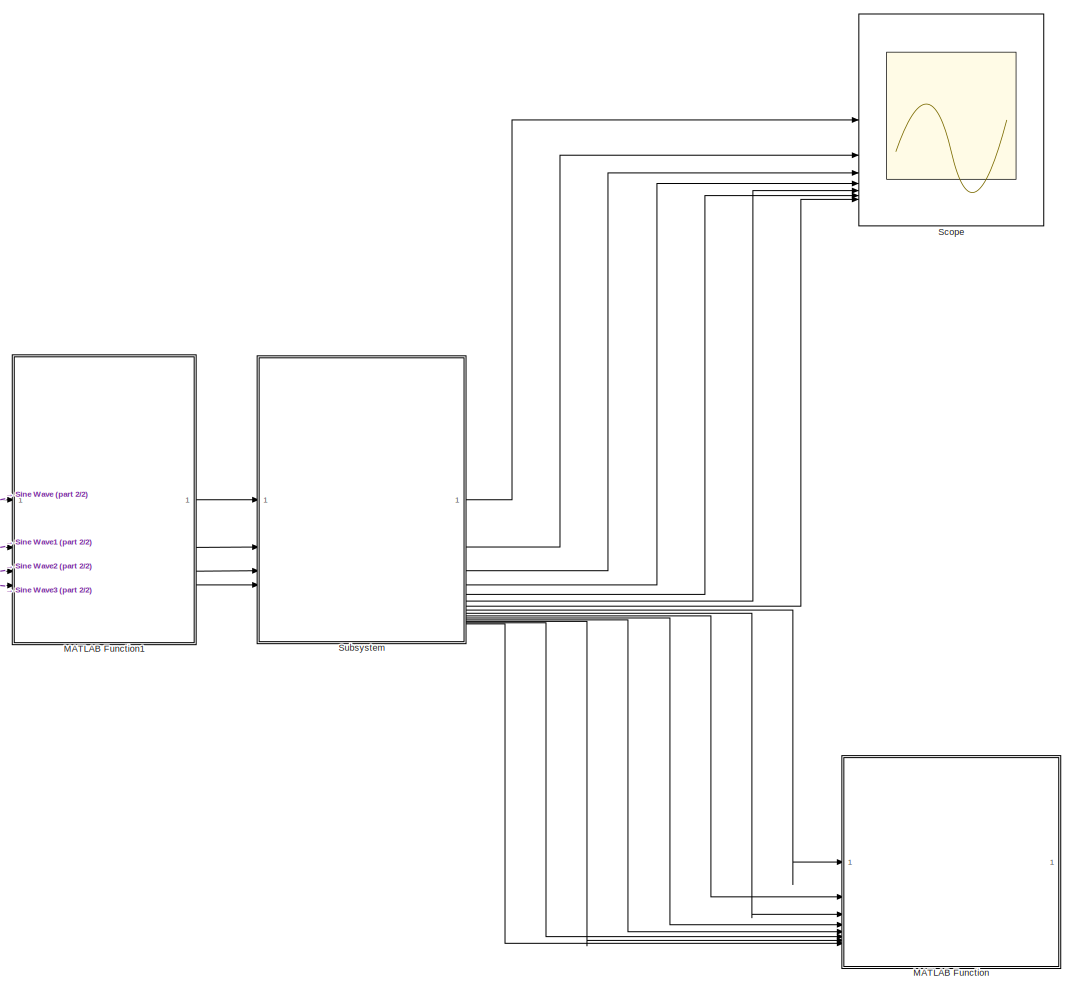
[diagram: root canvas - part 1/2, most of the canvas]
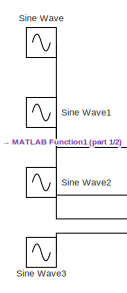
[diagram: root canvas - part 2/2, middle left region]
MODEL slx_ad8d6915db1b
KIND model
CONFIG AbsTol = auto
CONFIG EnableMultiTasking = off
CONFIG FixedStep = auto
CONFIG MaxStep = auto
CONFIG MinStep = auto
CONFIG RelTol = 1e-3
CONFIG SampleTimeConstraint = Unconstrained
CONFIG SolverName = VariableStepAuto
CONFIG StartTime = 0.0
CONFIG StopTime = 5
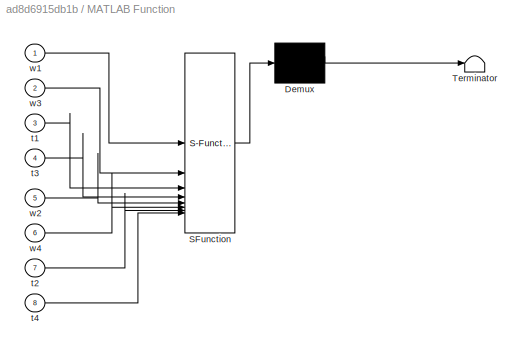
BLOCK [SubSystem] MATLAB Function
  ErrorFcn = Stateflow.Translate.translate
  PermitHierarchicalResolution = ExplicitOnly
  SFBlockType = MATLAB Function
  TreatAsAtomicUnit = on
BLOCK [Demux] MATLAB Function/ Demux 
  Outputs = 1
BLOCK [S-Function] MATLAB Function/ SFunction 
  EnableBusSupport = on
  FunctionName = sf_sfun
  PortCounts = [8 1]
  SFcnIsStateOwnerBlock = off
  SFunctionDeploymentMode = off
  Tag = Stateflow S-Function 2
BLOCK [Terminator] MATLAB Function/ Terminator 
BLOCK [Inport] MATLAB Function/t1
  Port = 3
BLOCK [Inport] MATLAB Function/t2
  Port = 7
BLOCK [Inport] MATLAB Function/t3
  Port = 4
BLOCK [Inport] MATLAB Function/t4
  Port = 8
BLOCK [Inport] MATLAB Function/w1
BLOCK [Inport] MATLAB Function/w2
  Port = 5
BLOCK [Inport] MATLAB Function/w3
  Port = 2
BLOCK [Inport] MATLAB Function/w4
  Port = 6
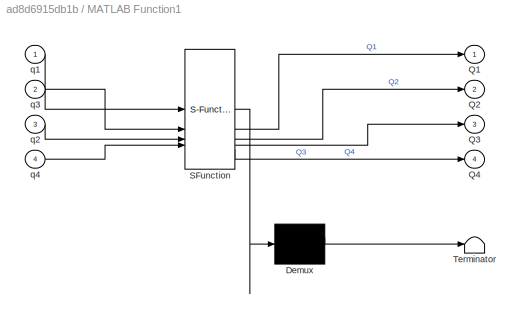
BLOCK [SubSystem] MATLAB Function1
  ErrorFcn = Stateflow.Translate.translate
  PermitHierarchicalResolution = ExplicitOnly
  SFBlockType = MATLAB Function
  TreatAsAtomicUnit = on
BLOCK [Demux] MATLAB Function1/ Demux 
  Outputs = 1
BLOCK [S-Function] MATLAB Function1/ SFunction 
  EnableBusSupport = on
  FunctionName = sf_sfun
  PortCounts = [4 5]
  SFcnIsStateOwnerBlock = off
  SFunctionDeploymentMode = off
  Tag = Stateflow S-Function 1
BLOCK [Terminator] MATLAB Function1/ Terminator 
BLOCK [Outport] MATLAB Function1/Q1
BLOCK [Outport] MATLAB Function1/Q2
  Port = 2
BLOCK [Outport] MATLAB Function1/Q3
  Port = 3
BLOCK [Outport] MATLAB Function1/Q4
  Port = 4
BLOCK [Inport] MATLAB Function1/q1
BLOCK [Inport] MATLAB Function1/q2
  Port = 3
BLOCK [Inport] MATLAB Function1/q3
  Port = 2
BLOCK [Inport] MATLAB Function1/q4
  Port = 4
BLOCK [Scope] Scope
  Floating = off
  NumInputPorts = 7
  ScopeSpecificationString = Simulink.scopes.TimeScopeBlockCfg('CurrentConfiguration', extmgr.ConfigurationSet(extmgr.Configuration('Core','General UI',true),extmgr.Configuration('Core','Source UI',true),extmgr.Configuration('Sources','WiredSimulink',true),extmgr.Configuration('Visuals','Time Domain',true,'SerializedDisplays',{struct('MinYLimReal','-0.00262','MaxYLimReal','0.00029','YLabelReal','','MinYLimMag','0.00000','MaxY...<+6872ch>
BLOCK [Sin] Sine Wave
  SampleTime = 0
BLOCK [Sin] Sine Wave1
  SampleTime = 0
BLOCK [Sin] Sine Wave2
  SampleTime = 0
BLOCK [Sin] Sine Wave3
  SampleTime = 0
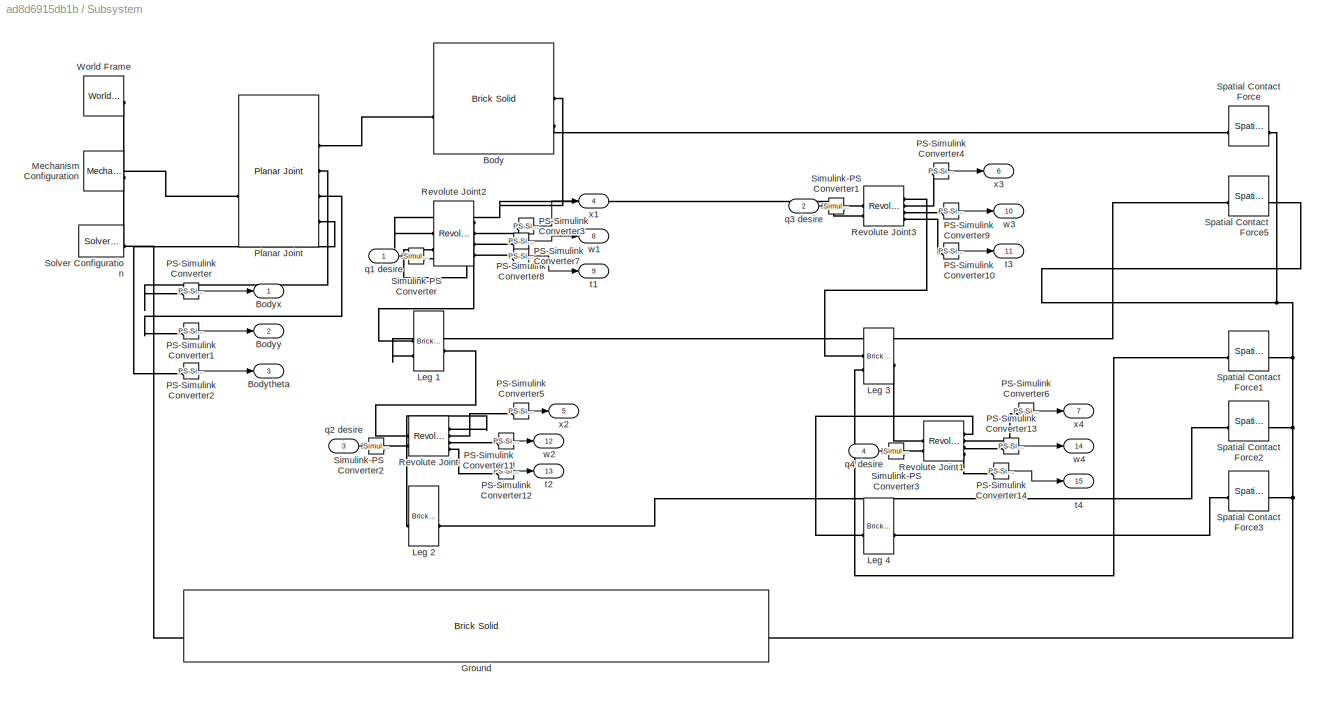
BLOCK [SubSystem] Subsystem
BLOCK [Reference] Subsystem/Body  REF=sm_lib/Body Elements/Brick Solid
  NameLocation = top
  SourceBlock = sm_lib/Body Elements/Brick Solid
  SourceType = Brick Solid
BLOCK [Outport] Subsystem/Bodytheta
  Port = 3
BLOCK [Outport] Subsystem/Bodyx
BLOCK [Outport] Subsystem/Bodyy
  Port = 2
BLOCK [Reference] Subsystem/Ground  REF=sm_lib/Body Elements/Brick Solid
  SourceBlock = sm_lib/Body Elements/Brick Solid
  SourceType = Brick Solid
BLOCK [Reference] Subsystem/Leg 1  REF=sm_lib/Body Elements/Brick Solid
  SourceBlock = sm_lib/Body Elements/Brick Solid
  SourceType = Brick Solid
BLOCK [Reference] Subsystem/Leg 2  REF=sm_lib/Body Elements/Brick Solid
  SourceBlock = sm_lib/Body Elements/Brick Solid
  SourceType = Brick Solid
BLOCK [Reference] Subsystem/Leg 3  REF=sm_lib/Body Elements/Brick Solid
  SourceBlock = sm_lib/Body Elements/Brick Solid
  SourceType = Brick Solid
BLOCK [Reference] Subsystem/Leg 4  REF=sm_lib/Body Elements/Brick Solid
  SourceBlock = sm_lib/Body Elements/Brick Solid
  SourceType = Brick Solid
BLOCK [Reference] Subsystem/Mechanism Configuration  REF=sm_lib/Utilities/Mechanism
Configuration
  SourceBlock = sm_lib/Utilities/Mechanism\nConfiguration
  SourceType = Mechanism\nConfiguration
BLOCK [Reference] Subsystem/PS-Simulink Converter  REF=nesl_utility/PS-Simulink
Converter
  SourceBlock = nesl_utility/PS-Simulink\nConverter
  SourceType = PS-Simulink\nConverter
BLOCK [Reference] Subsystem/PS-Simulink Converter1  REF=nesl_utility/PS-Simulink
Converter
  SourceBlock = nesl_utility/PS-Simulink\nConverter
  SourceType = PS-Simulink\nConverter
BLOCK [Reference] Subsystem/PS-Simulink Converter10  REF=nesl_utility/PS-Simulink
Converter
  SourceBlock = nesl_utility/PS-Simulink\nConverter
  SourceType = PS-Simulink\nConverter
BLOCK [Reference] Subsystem/PS-Simulink Converter11  REF=nesl_utility/PS-Simulink
Converter
  SourceBlock = nesl_utility/PS-Simulink\nConverter
  SourceType = PS-Simulink\nConverter
BLOCK [Reference] Subsystem/PS-Simulink Converter12  REF=nesl_utility/PS-Simulink
Converter
  SourceBlock = nesl_utility/PS-Simulink\nConverter
  SourceType = PS-Simulink\nConverter
BLOCK [Reference] Subsystem/PS-Simulink Converter13  REF=nesl_utility/PS-Simulink
Converter
  SourceBlock = nesl_utility/PS-Simulink\nConverter
  SourceType = PS-Simulink\nConverter
BLOCK [Reference] Subsystem/PS-Simulink Converter14  REF=nesl_utility/PS-Simulink
Converter
  SourceBlock = nesl_utility/PS-Simulink\nConverter
  SourceType = PS-Simulink\nConverter
BLOCK [Reference] Subsystem/PS-Simulink Converter2  REF=nesl_utility/PS-Simulink
Converter
  SourceBlock = nesl_utility/PS-Simulink\nConverter
  SourceType = PS-Simulink\nConverter
BLOCK [Reference] Subsystem/PS-Simulink Converter3  REF=nesl_utility/PS-Simulink
Converter
  SourceBlock = nesl_utility/PS-Simulink\nConverter
  SourceType = PS-Simulink\nConverter
BLOCK [Reference] Subsystem/PS-Simulink Converter4  REF=nesl_utility/PS-Simulink
Converter
  SourceBlock = nesl_utility/PS-Simulink\nConverter
  SourceType = PS-Simulink\nConverter
BLOCK [Reference] Subsystem/PS-Simulink Converter5  REF=nesl_utility/PS-Simulink
Converter
  SourceBlock = nesl_utility/PS-Simulink\nConverter
  SourceType = PS-Simulink\nConverter
BLOCK [Reference] Subsystem/PS-Simulink Converter6  REF=nesl_utility/PS-Simulink
Converter
  SourceBlock = nesl_utility/PS-Simulink\nConverter
  SourceType = PS-Simulink\nConverter
BLOCK [Reference] Subsystem/PS-Simulink Converter7  REF=nesl_utility/PS-Simulink
Converter
  SourceBlock = nesl_utility/PS-Simulink\nConverter
  SourceType = PS-Simulink\nConverter
BLOCK [Reference] Subsystem/PS-Simulink Converter8  REF=nesl_utility/PS-Simulink
Converter
  SourceBlock = nesl_utility/PS-Simulink\nConverter
  SourceType = PS-Simulink\nConverter
BLOCK [Reference] Subsystem/PS-Simulink Converter9  REF=nesl_utility/PS-Simulink
Converter
  SourceBlock = nesl_utility/PS-Simulink\nConverter
  SourceType = PS-Simulink\nConverter
BLOCK [Reference] Subsystem/Planar Joint  REF=sm_lib/Joints/Planar Joint
  SourceBlock = sm_lib/Joints/Planar Joint
  SourceType = Planar Joint
BLOCK [Reference] Subsystem/Revolute Joint  REF=sm_lib/Joints/Revolute Joint
  SourceBlock = sm_lib/Joints/Revolute Joint
  SourceType = Revolute Joint
BLOCK [Reference] Subsystem/Revolute Joint1  REF=sm_lib/Joints/Revolute Joint
  SourceBlock = sm_lib/Joints/Revolute Joint
  SourceType = Revolute Joint
BLOCK [Reference] Subsystem/Revolute Joint2  REF=sm_lib/Joints/Revolute Joint
  SourceBlock = sm_lib/Joints/Revolute Joint
  SourceType = Revolute Joint
BLOCK [Reference] Subsystem/Revolute Joint3  REF=sm_lib/Joints/Revolute Joint
  SourceBlock = sm_lib/Joints/Revolute Joint
  SourceType = Revolute Joint
BLOCK [Reference] Subsystem/Simulink-PS Converter  REF=nesl_utility/Simulink-PS
Converter
  SourceBlock = nesl_utility/Simulink-PS\nConverter
  SourceType = Simulink-PS\nConverter
BLOCK [Reference] Subsystem/Simulink-PS Converter1  REF=nesl_utility/Simulink-PS
Converter
  SourceBlock = nesl_utility/Simulink-PS\nConverter
  SourceType = Simulink-PS\nConverter
BLOCK [Reference] Subsystem/Simulink-PS Converter2  REF=nesl_utility/Simulink-PS
Converter
  SourceBlock = nesl_utility/Simulink-PS\nConverter
  SourceType = Simulink-PS\nConverter
BLOCK [Reference] Subsystem/Simulink-PS Converter3  REF=nesl_utility/Simulink-PS
Converter
  SourceBlock = nesl_utility/Simulink-PS\nConverter
  SourceType = Simulink-PS\nConverter
BLOCK [Reference] Subsystem/Solver Configuration  REF=nesl_utility/Solver
Configuration
  SourceBlock = nesl_utility/Solver\nConfiguration
  SourceType = Solver\nConfiguration
BLOCK [Reference] Subsystem/Spatial Contact Force  REF=sm_lib/Forces and
Torques/Spatial
Contact Force
  SourceBlock = sm_lib/Forces and\nTorques/Spatial\nContact Force
  SourceType = Spatial\nContact Force
BLOCK [Reference] Subsystem/Spatial Contact Force1  REF=sm_lib/Forces and
Torques/Spatial
Contact Force
  SourceBlock = sm_lib/Forces and\nTorques/Spatial\nContact Force
  SourceType = Spatial\nContact Force
BLOCK [Reference] Subsystem/Spatial Contact Force2  REF=sm_lib/Forces and
Torques/Spatial
Contact Force
  SourceBlock = sm_lib/Forces and\nTorques/Spatial\nContact Force
  SourceType = Spatial\nContact Force
BLOCK [Reference] Subsystem/Spatial Contact Force3  REF=sm_lib/Forces and
Torques/Spatial
Contact Force
  SourceBlock = sm_lib/Forces and\nTorques/Spatial\nContact Force
  SourceType = Spatial\nContact Force
BLOCK [Reference] Subsystem/Spatial Contact Force5  REF=sm_lib/Forces and
Torques/Spatial
Contact Force
  SourceBlock = sm_lib/Forces and\nTorques/Spatial\nContact Force
  SourceType = Spatial\nContact Force
BLOCK [Reference] Subsystem/World Frame  REF=sm_lib/Frames and
Transforms/World Frame
  SourceBlock = sm_lib/Frames and\nTransforms/World Frame
  SourceType = World Frame
BLOCK [Inport] Subsystem/q1 desire
BLOCK [Inport] Subsystem/q2 desire
  Port = 3
BLOCK [Inport] Subsystem/q3 desire
  Port = 2
BLOCK [Inport] Subsystem/q4 desire
  Port = 4
BLOCK [Outport] Subsystem/t1
  Port = 9
BLOCK [Outport] Subsystem/t2
  Port = 13
BLOCK [Outport] Subsystem/t3
  Port = 11
BLOCK [Outport] Subsystem/t4
  Port = 15
BLOCK [Outport] Subsystem/w1
  Port = 8
BLOCK [Outport] Subsystem/w2
  Port = 12
BLOCK [Outport] Subsystem/w3
  Port = 10
BLOCK [Outport] Subsystem/w4
  Port = 14
BLOCK [Outport] Subsystem/x1
  Port = 4
BLOCK [Outport] Subsystem/x2
  Port = 5
BLOCK [Outport] Subsystem/x3
  Port = 6
BLOCK [Outport] Subsystem/x4
  Port = 7
LINE MATLAB Function1:1 -> Subsystem:1
LINE MATLAB Function1:2 -> Subsystem:2
LINE MATLAB Function1:3 -> Subsystem:3
LINE MATLAB Function1:4 -> Subsystem:4
LINE Sine Wave1:1 -> MATLAB Function1:2
LINE Sine Wave2:1 -> MATLAB Function1:3
LINE Sine Wave3:1 -> MATLAB Function1:4
LINE Sine Wave:1 -> MATLAB Function1:1
LINE Subsystem/PS-Simulink Converter10:1 -> Subsystem/t3:1
LINE Subsystem/PS-Simulink Converter11:1 -> Subsystem/w2:1
LINE Subsystem/PS-Simulink Converter12:1 -> Subsystem/t2:1
LINE Subsystem/PS-Simulink Converter13:1 -> Subsystem/w4:1
LINE Subsystem/PS-Simulink Converter14:1 -> Subsystem/t4:1
LINE Subsystem/PS-Simulink Converter1:1 -> Subsystem/Bodyy:1
LINE Subsystem/PS-Simulink Converter2:1 -> Subsystem/Bodytheta:1
LINE Subsystem/PS-Simulink Converter3:1 -> Subsystem/x1:1
LINE Subsystem/PS-Simulink Converter4:1 -> Subsystem/x3:1
LINE Subsystem/PS-Simulink Converter5:1 -> Subsystem/x2:1
LINE Subsystem/PS-Simulink Converter6:1 -> Subsystem/x4:1
LINE Subsystem/PS-Simulink Converter7:1 -> Subsystem/t1:1
LINE Subsystem/PS-Simulink Converter8:1 -> Subsystem/w1:1
LINE Subsystem/PS-Simulink Converter9:1 -> Subsystem/w3:1
LINE Subsystem/PS-Simulink Converter:1 -> Subsystem/Bodyx:1
LINE Subsystem/q1 desire:1 -> Subsystem/Simulink-PS Converter:1
LINE Subsystem/q2 desire:1 -> Subsystem/Simulink-PS Converter2:1
LINE Subsystem/q3 desire:1 -> Subsystem/Simulink-PS Converter1:1
LINE Subsystem/q4 desire:1 -> Subsystem/Simulink-PS Converter3:1
LINE Subsystem:1 -> Scope:1
LINE Subsystem:10 -> MATLAB Function:2
LINE Subsystem:11 -> MATLAB Function:4
LINE Subsystem:12 -> MATLAB Function:5
LINE Subsystem:13 -> MATLAB Function:7
LINE Subsystem:14 -> MATLAB Function:6
LINE Subsystem:15 -> MATLAB Function:8
LINE Subsystem:2 -> Scope:2
LINE Subsystem:3 -> Scope:3
LINE Subsystem:4 -> Scope:4
LINE Subsystem:5 -> Scope:6
LINE Subsystem:6 -> Scope:5
LINE Subsystem:7 -> Scope:7
LINE Subsystem:8 -> MATLAB Function:1
LINE Subsystem:9 -> MATLAB Function:3
PNET net1: Subsystem/Body:LConn1 -- Subsystem/Revolute Joint2:LConn1 -- Subsystem/Revolute Joint3:LConn1
PLINE Subsystem/Body:LConn2 -- Subsystem/Spatial Contact Force:LConn1
PLINE Subsystem/Body:RConn1 -- Subsystem/Planar Joint:RConn1
PNET net2: Subsystem/Ground:LConn1 -- Subsystem/Mechanism Configuration:RConn1 -- Subsystem/Planar Joint:LConn1 -- Subsystem/Solver Configuration:RConn1 -- Subsystem/World Frame:RConn1
PNET net3: Subsystem/Ground:RConn1 -- Subsystem/Spatial Contact Force1:RConn1 -- Subsystem/Spatial Contact Force2:RConn1 -- Subsystem/Spatial Contact Force3:RConn1 -- Subsystem/Spatial Contact Force5:RConn1 -- Subsystem/Spatial Contact Force:RConn1
PLINE Subsystem/Leg 1:LConn1 -- Subsystem/Revolute Joint2:RConn1
PLINE Subsystem/Leg 1:LConn2 -- Subsystem/Spatial Contact Force5:LConn1
PLINE Subsystem/Leg 1:RConn1 -- Subsystem/Revolute Joint:LConn1
PLINE Subsystem/Leg 2:LConn1 -- Subsystem/Revolute Joint:RConn1
PLINE Subsystem/Leg 2:RConn1 -- Subsystem/Spatial Contact Force2:LConn1
PLINE Subsystem/Leg 3:LConn1 -- Subsystem/Revolute Joint3:RConn1
PLINE Subsystem/Leg 3:LConn2 -- Subsystem/Spatial Contact Force1:LConn1
PLINE Subsystem/Leg 3:RConn1 -- Subsystem/Revolute Joint1:LConn1
PLINE Subsystem/Leg 4:LConn1 -- Subsystem/Revolute Joint1:RConn1
PLINE Subsystem/Leg 4:RConn1 -- Subsystem/Spatial Contact Force3:LConn1
PLINE Subsystem/PS-Simulink Converter10:LConn1 -- Subsystem/Revolute Joint3:RConn4
PLINE Subsystem/PS-Simulink Converter11:LConn1 -- Subsystem/Revolute Joint:RConn3
PLINE Subsystem/PS-Simulink Converter12:LConn1 -- Subsystem/Revolute Joint:RConn4
PLINE Subsystem/PS-Simulink Converter13:LConn1 -- Subsystem/Revolute Joint1:RConn3
PLINE Subsystem/PS-Simulink Converter14:LConn1 -- Subsystem/Revolute Joint1:RConn4
PLINE Subsystem/PS-Simulink Converter1:LConn1 -- Subsystem/Planar Joint:RConn3
PLINE Subsystem/PS-Simulink Converter2:LConn1 -- Subsystem/Planar Joint:RConn4
PLINE Subsystem/PS-Simulink Converter3:LConn1 -- Subsystem/Revolute Joint2:RConn2
PLINE Subsystem/PS-Simulink Converter4:LConn1 -- Subsystem/Revolute Joint3:RConn2
PLINE Subsystem/PS-Simulink Converter5:LConn1 -- Subsystem/Revolute Joint:RConn2
PLINE Subsystem/PS-Simulink Converter6:LConn1 -- Subsystem/Revolute Joint1:RConn2
PLINE Subsystem/PS-Simulink Converter7:LConn1 -- Subsystem/Revolute Joint2:RConn4
PLINE Subsystem/PS-Simulink Converter8:LConn1 -- Subsystem/Revolute Joint2:RConn3
PLINE Subsystem/PS-Simulink Converter9:LConn1 -- Subsystem/Revolute Joint3:RConn3
PLINE Subsystem/PS-Simulink Converter:LConn1 -- Subsystem/Planar Joint:RConn2
PLINE Subsystem/Revolute Joint1:LConn2 -- Subsystem/Simulink-PS Converter3:RConn1
PLINE Subsystem/Revolute Joint2:LConn2 -- Subsystem/Simulink-PS Converter:RConn1
PLINE Subsystem/Revolute Joint3:LConn2 -- Subsystem/Simulink-PS Converter1:RConn1
PLINE Subsystem/Revolute Joint:LConn2 -- Subsystem/Simulink-PS Converter2:RConn1
note: PNET lines group multi-terminal physical nets as a canonical sorted terminal list (undirected conserving connections); 2-terminal nets keep the pairwise PLINE form
CHART MATLAB Function1 states=1 transitions=1
  STATE_LABEL 'eML_blk_kernel()'
  STATE_LABEL 'SCRIPT:\nfunction [Q1,Q2,Q3,Q4] = torqueSaturation(q1,q3,q2,q4)\ntmax13 = 30;\ntmax24 = 60;\n\n    if q1 > tmax13\n        Q1 = tmax13;\n    elseif q1 < -tmax13\n        Q1 = -tmax13;\n    else Q1 = q1;\n    end\n\n    if q3 > tmax13\n        Q3 = tmax13;\n    elseif q3 < -tmax13\n        Q3 = -tmax13;\n    else Q3 = q3;\n    end\n\n    if q2 > tmax24\n        Q2 = tmax24;\n    elseif q2 < -tmax24\n        Q2 = -tmax24...<+145ch>'
CHART MATLAB Function states=1 transitions=1
  STATE_LABEL 'eML_blk_kernel()'
  STATE_LABEL "SCRIPT:\nfunction assertion(w1,w3,t1,t3,w2,w4,t2,t4)\n\n    if w1 > 30\n       error('w1 exceed 30')\n    end\n\n    if w3 > 30\n       error('w3 exceed 30')\n    end\n\n    if t1 > 30\n       error('t1 exceed 30')\n    end\n\n    if t3 > 30\n       error('t3 exceed 30')\n    end\n\n    if w2 > 15\n        error('w2 exceed 15')\n    end\n\n    if w4 > 15\n        error('w4 exceed 15')\n    end\n\n    if t2 > 60\n        erro...<+84ch>"
CHART  states=0 transitions=0
CHART  states=0 transitions=0
